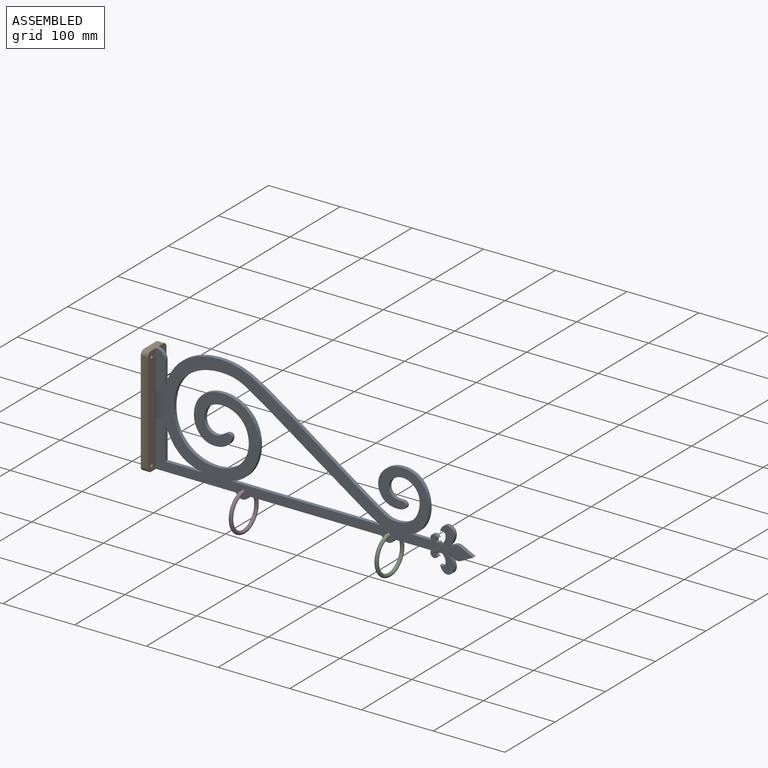
[diagram: assembled view]
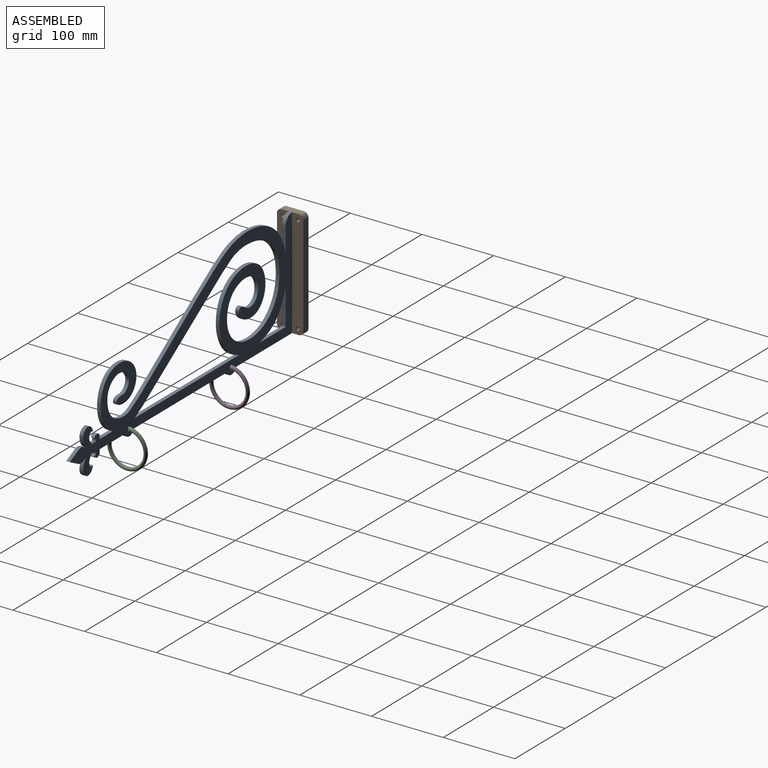
[diagram: assembled view, second angle]
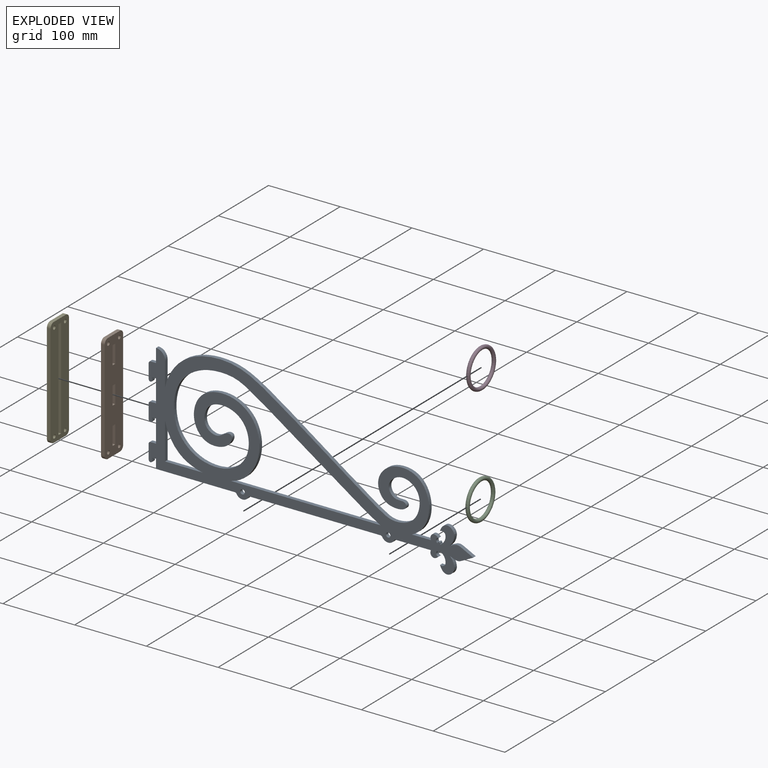
[diagram: exploded view]
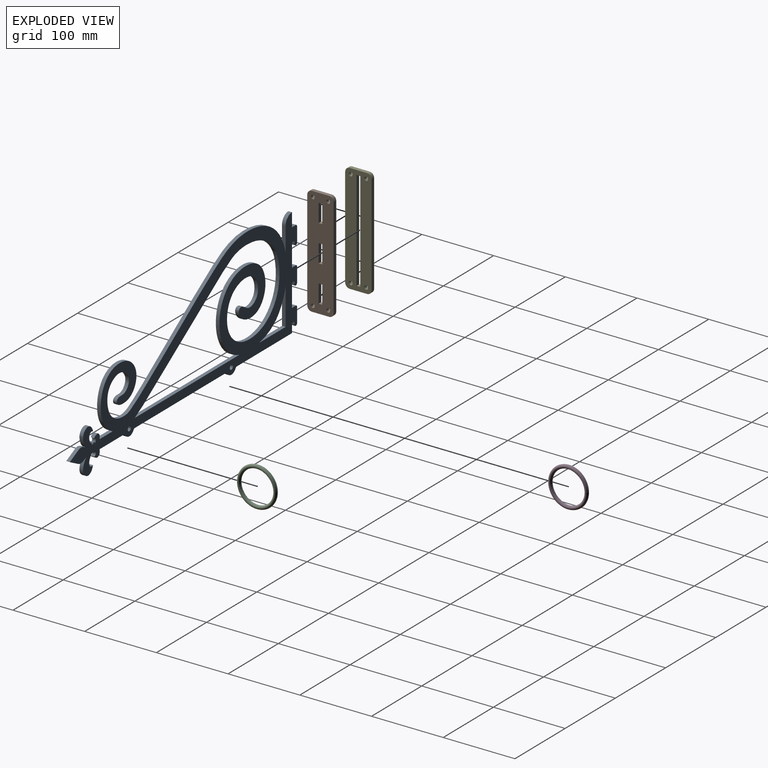
[diagram: exploded view, second angle]
ASSEMBLY  parts=5 mates=4
PART A: 58 faces, bbox 452.5x5.1x189.2 mm
  f0: plane 26.19x5.08mm, normal (0,0,1), area 133mm2, adj f29,f30,f41,f57
  f1: plane 208.49x5.08mm, normal (0,0,1), area 1059.2mm2, adj f29,f30,f43
  f2: plane 50.85x5.08mm, normal (1,0,0), area 258.3mm2, adj f13,f29,f30,f42
  f3: plane 7.62x5.08mm, normal (0,0,1), area 38.7mm2, adj f27,f29,f30,f31
  f4: plane 20.32x5.08mm, normal (-1,0,0), area 103.2mm2, adj f29,f30,f31,f32
  f5: plane 5.08x3.81mm, normal (1,0,0), area 19.4mm2, adj f6,f29,f30,f32
  f6: plane 5.08x5.08mm, normal (0,0,-1), area 25.8mm2, adj f5,f7,f29,f30
  f7: plane 12.7x5.08mm, normal (-1,0,0), area 64.5mm2, adj f6,f8,f29,f30
  f8: plane 110.02x5.08mm, normal (0,0,-1), area 558.9mm2, adj f7,f29,f30,f33
  f9: cylinder r=9.53mm len=16.78mm, axis (0,1,0), area 104.3mm2, adj f29,f30,f33,f34
  f10: plane 181.95x5.08mm, normal (0,0,-1), area 924.3mm2, adj f29,f30,f34,f35
  f11: cylinder r=9.53mm len=16.78mm, axis (0,1,0), area 104.3mm2, adj f29,f30,f35,f36
  f12: plane 48.9x5.08mm, normal (0,0,-1), area 248.4mm2, adj f29,f30,f36,f44
  f13: plane 52.27x5.08mm, normal (0,0,1), area 265.5mm2, adj f2,f29,f30,f42
  f14: plane 33.1x5.08mm, normal (1,0,0), area 168.1mm2, adj f15,f29,f30,f41
  f15: cylinder r=12.7mm len=12.7mm, axis (0,1,0), area 101.3mm2, adj f14,f16,f29,f30
  f16: plane 19.05x5.08mm, normal (-1,0,0), area 96.8mm2, adj f15,f17,f29,f30
  f17: plane 7.62x5.08mm, normal (0,0,1), area 38.7mm2, adj f16,f29,f30,f37
  f18: plane 20.32x5.08mm, normal (-1,0,0), area 103.2mm2, adj f29,f30,f37,f38
  f19: plane 5.08x3.81mm, normal (1,0,0), area 19.4mm2, adj f20,f29,f30,f38
  f20: plane 5.08x5.08mm, normal (0,0,-1), area 25.8mm2, adj f19,f21,f29,f30
  f21: plane 31.75x5.08mm, normal (-1,0,0), area 161.3mm2, adj f20,f22,f29,f30
  f22: plane 7.62x5.08mm, normal (0,0,1), area 38.7mm2, adj f21,f29,f30,f39
  f23: plane 20.32x5.08mm, normal (-1,0,0), area 103.2mm2, adj f29,f30,f39,f40
  f24: plane 5.08x3.81mm, normal (1,0,0), area 19.4mm2, adj f25,f29,f30,f40
  f25: plane 5.08x5.08mm, normal (0,0,-1), area 25.8mm2, adj f24,f27,f29,f30
  f26: cylinder r=3.17mm len=6.35mm, axis (0,1,0), area 101.3mm2, adj f29,f30
  f27: plane 31.75x5.08mm, normal (-1,0,0), area 161.3mm2, adj f3,f25,f29,f30
  f28: cylinder r=3.17mm len=6.35mm, axis (0,1,0), area 101.3mm2, adj f29,f30
  f29: plane 452.55x189.2mm, normal (0,-1,0), area 23179.9mm2, adj f0,f1,f2,f3,f4,f5,f6,f7
  f30: plane 452.55x189.2mm, normal (0,1,0), area 23179.9mm2, adj f0,f1,f2,f3,f4,f5,f6,f7
  f31: cylinder r=2.54mm len=5.08mm, axis (0,1,0), area 20.3mm2, adj f3,f4,f29,f30
  f32: cylinder r=2.54mm len=5.08mm, axis (0,1,0), area 40.5mm2, adj f4,f5,f29,f30
  f33: cylinder r=2.54mm len=5.08mm, axis (0,1,0), area 13.9mm2, adj f8,f9,f29,f30
  f34: cylinder r=2.54mm len=5.08mm, axis (0,1,0), area 13.9mm2, adj f9,f10,f29,f30
  f35: cylinder r=2.54mm len=5.08mm, axis (0,1,0), area 13.9mm2, adj f10,f11,f29,f30
  f36: cylinder r=2.54mm len=5.08mm, axis (0,1,0), area 13.9mm2, adj f11,f12,f29,f30
  f37: cylinder r=2.54mm len=5.08mm, axis (0,1,0), area 20.3mm2, adj f17,f18,f29,f30
  f38: cylinder r=2.54mm len=5.08mm, axis (0,1,0), area 40.5mm2, adj f18,f19,f29,f30
  f39: cylinder r=2.54mm len=5.08mm, axis (0,1,0), area 20.3mm2, adj f22,f23,f29,f30
  f40: cylinder r=2.54mm len=5.08mm, axis (0,1,0), area 40.5mm2, adj f23,f24,f29,f30
  f41: extruded ~368.12x149.31mm, area 3912.8mm2, adj f0,f14,f29,f30
  f42: extruded ~52.27x50.85mm, area 393.8mm2, adj f2,f13,f29,f30
  f43: extruded ~287.88x132.85mm, area 5025.9mm2, adj f1,f29,f30
  f44: extruded ~11.15x8.6mm, area 94.5mm2, adj f12,f29,f30,f45
  f45: extruded ~6.71x5.08mm, area 47.7mm2, adj f29,f30,f44,f46
  f46: cylinder r=1.53mm len=5.08mm, axis (0,-1,0), area 26.7mm2, adj f29,f30,f45,f47
  f47: plane 5.08x0.83mm, normal (1,0,0), area 4.2mm2, adj f29,f30,f46,f48
  f48: extruded ~17.38x8.12mm, area 134.9mm2, adj f29,f30,f47,f49
  f49: extruded ~24.52x19.95mm, area 235.4mm2, adj f29,f30,f48,f50
  f50: extruded ~32.57x9.92mm, area 180.6mm2, adj f29,f30,f49,f51
  f51: extruded ~32.57x9.94mm, area 180.4mm2, adj f29,f30,f50,f52
  f52: extruded ~24.51x19.95mm, area 235.4mm2, adj f29,f30,f51,f53
  f53: extruded ~17.38x8.12mm, area 134.9mm2, adj f29,f30,f52,f54
  f54: plane 5.08x0.83mm, normal (1,0,0), area 4.2mm2, adj f29,f30,f53,f55
  f55: cylinder r=1.53mm len=5.08mm, axis (0,-1,0), area 26.7mm2, adj f29,f30,f54,f56
  f56: extruded ~6.71x5.08mm, area 47.7mm2, adj f29,f30,f55,f57
  f57: extruded ~11.15x8.6mm, area 94.5mm2, adj f0,f29,f30,f56
PART B: 26 faces, bbox 5.1x36.8x152.4 mm
  f0: plane 5.08x5.08mm, normal (0,0,1), area 25.8mm2, adj f1,f23,f24,f25
  f1: plane 25.4x5.08mm, normal (0,1,0), area 129mm2, adj f0,f2,f24,f25
  f2: plane 5.08x5.08mm, normal (0,0,-1), area 25.8mm2, adj f1,f23,f24,f25
  f3: plane 5.08x5.08mm, normal (0,0,1), area 25.8mm2, adj f4,f16,f24,f25
  f4: plane 25.4x5.08mm, normal (0,1,0), area 129mm2, adj f3,f5,f24,f25
  f5: plane 5.08x5.08mm, normal (0,0,-1), area 25.8mm2, adj f4,f16,f24,f25
  f6: plane 139.7x5.08mm, normal (0,1,0), area 709.7mm2, adj f7,f17,f24,f25
  f7: cylinder r=6.35mm len=6.35mm, axis (-1,0,0), area 50.7mm2, adj f6,f8,f24,f25
  f8: plane 24.13x5.08mm, normal (0,0,1), area 122.6mm2, adj f7,f9,f24,f25
  f9: cylinder r=6.35mm len=6.35mm, axis (-1,0,0), area 50.7mm2, adj f8,f10,f24,f25
  f10: plane 139.7x5.08mm, normal (0,-1,0), area 709.7mm2, adj f9,f11,f24,f25
  f11: cylinder r=6.35mm len=6.35mm, axis (-1,0,0), area 50.7mm2, adj f10,f12,f24,f25
  f12: plane 24.13x5.08mm, normal (0,0,-1), area 122.6mm2, adj f11,f17,f24,f25
  f13: plane 25.4x5.08mm, normal (0,1,0), area 129mm2, adj f14,f22,f24,f25
  f14: plane 5.08x5.08mm, normal (0,0,-1), area 25.8mm2, adj f13,f15,f24,f25
  f15: plane 25.4x5.08mm, normal (0,-1,0), area 129mm2, adj f14,f22,f24,f25
  f16: plane 25.4x5.08mm, normal (0,-1,0), area 129mm2, adj f3,f5,f24,f25
  f17: cylinder r=6.35mm len=6.35mm, axis (-1,0,0), area 50.7mm2, adj f6,f12,f24,f25
  f18: cylinder r=2.54mm len=5.08mm, axis (-1,0,0), area 81.1mm2, adj f24,f25
  f19: cylinder r=2.54mm len=5.08mm, axis (-1,0,0), area 81.1mm2, adj f24,f25
  f20: cylinder r=2.54mm len=5.08mm, axis (-1,0,0), area 81.1mm2, adj f24,f25
  f21: cylinder r=2.54mm len=5.08mm, axis (-1,0,0), area 81.1mm2, adj f24,f25
  f22: plane 5.08x5.08mm, normal (0,0,1), area 25.8mm2, adj f13,f15,f24,f25
  f23: plane 25.4x5.08mm, normal (0,-1,0), area 129mm2, adj f0,f2,f24,f25
  f24: plane 152.4x36.83mm, normal (1,0,0), area 5110.1mm2, adj f0,f1,f2,f3,f4,f5,f6,f7
  f25: plane 152.4x36.83mm, normal (-1,0,0), area 5110.1mm2, adj f0,f1,f2,f3,f4,f5,f6,f7
PART C: 1 faces, bbox 5.1x60.5x60.5 mm
  f0: torus R=25.4mm, axis (-1,0,0), area 2547mm2
PART D: same geometry as C
PART E: 18 faces, bbox 5.1x36.8x152.4 mm
  f0: plane 139.7x5.08mm, normal (0,1,0), area 709.7mm2, adj f1,f15,f16,f17
  f1: cylinder r=6.35mm len=6.35mm, axis (-1,0,0), area 50.7mm2, adj f0,f2,f16,f17
  f2: plane 24.13x5.08mm, normal (0,0,1), area 122.6mm2, adj f1,f3,f16,f17
  f3: cylinder r=6.35mm len=6.35mm, axis (-1,0,0), area 50.7mm2, adj f2,f4,f16,f17
  f4: plane 139.7x5.08mm, normal (0,-1,0), area 709.7mm2, adj f3,f5,f16,f17
  f5: cylinder r=6.35mm len=6.35mm, axis (-1,0,0), area 50.7mm2, adj f4,f6,f16,f17
  f6: plane 24.13x5.08mm, normal (0,0,-1), area 122.6mm2, adj f5,f15,f16,f17
  f7: plane 139.7x5.08mm, normal (0,1,0), area 709.7mm2, adj f8,f14,f16,f17
  f8: plane 5.08x5.08mm, normal (0,0,-1), area 25.8mm2, adj f7,f9,f16,f17
  f9: plane 139.7x5.08mm, normal (0,-1,0), area 709.7mm2, adj f8,f14,f16,f17
  f10: cylinder r=2.54mm len=5.08mm, axis (-1,0,0), area 81.1mm2, adj f16,f17
  f11: cylinder r=2.54mm len=5.08mm, axis (-1,0,0), area 81.1mm2, adj f16,f17
  f12: cylinder r=2.54mm len=5.08mm, axis (-1,0,0), area 81.1mm2, adj f16,f17
  f13: cylinder r=2.54mm len=5.08mm, axis (-1,0,0), area 81.1mm2, adj f16,f17
  f14: plane 5.08x5.08mm, normal (0,0,1), area 25.8mm2, adj f7,f9,f16,f17
  f15: cylinder r=6.35mm len=6.35mm, axis (-1,0,0), area 50.7mm2, adj f0,f6,f16,f17
  f16: plane 152.4x36.83mm, normal (1,0,0), area 4787.5mm2, adj f0,f1,f2,f3,f4,f5,f6,f7
  f17: plane 152.4x36.83mm, normal (-1,0,0), area 4787.5mm2, adj f0,f1,f2,f3,f4,f5,f6,f7
PLACE A t=(5.08,0,0)mm
PLACE B at identity fixed
PLACE C t=(328.93,0,-22.22)mm
PLACE D t=(125.73,0,-22.22)mm
PLACE E t=(-5.08,0,0)mm
MATE fastened C.f0 <-> A.f11  axis (0,-1,0) through (328.93,0,3.18)mm
MATE fastened D.f0 <-> A.f9  axis (0,-1,0) through (125.73,0,3.18)mm
MATE fastened E.f13 <-> B.f21  axis (1,0,0) through (0,-10.79,7.62)mm
MATE fastened A.f7 <-> B.f24  axis (-1,0,0) through (5.08,0,0)mm
